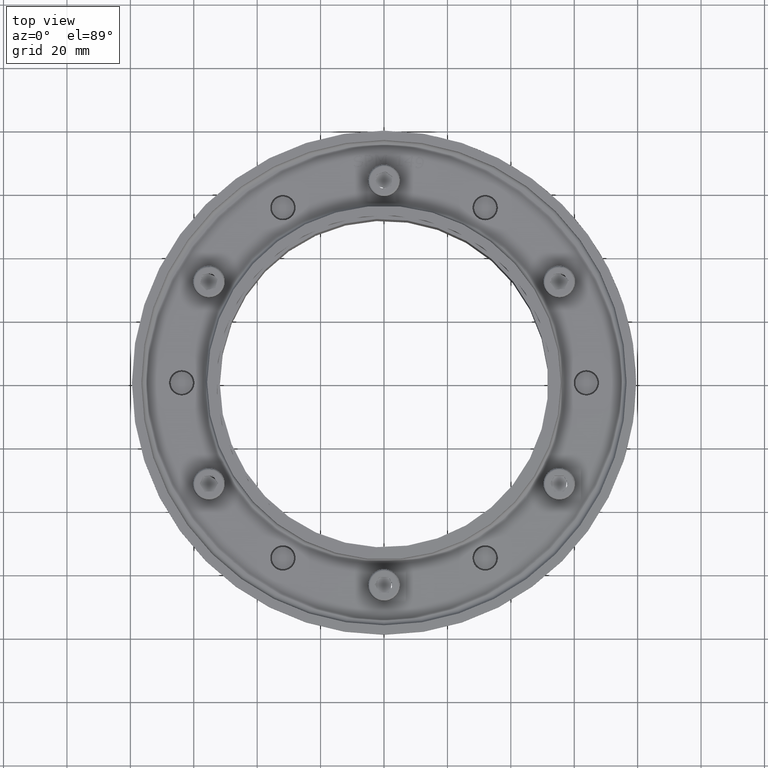
[diagram: clean part render]
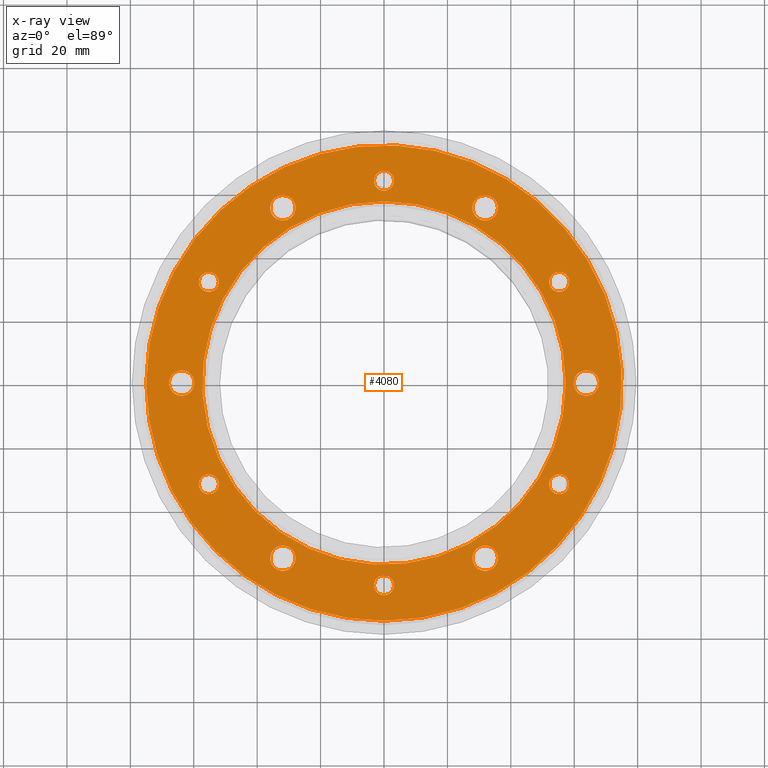
[diagram: x-ray — body ghosted, one internal face saturated and labeled with its STEP entity id]
A machine part, top view, then the same camera in x-ray: the body is ghosted and one INTERNAL B-rep face — a face not visible from any outside direction — is saturated and labeled: STEP entity #4080.
In plain terms, the highlighted planar face has unit normal (0, 0, -1).
Its self-contained STEP definition (entity closure, byte-faithful):
#171=FACE_BOUND('',#871,.T.);
#172=FACE_BOUND('',#872,.T.);
#173=FACE_BOUND('',#873,.T.);
#174=FACE_BOUND('',#874,.T.);
#175=FACE_BOUND('',#875,.T.);
#176=FACE_BOUND('',#876,.T.);
#177=FACE_BOUND('',#877,.T.);
#178=FACE_BOUND('',#878,.T.);
#179=FACE_BOUND('',#879,.T.);
#180=FACE_BOUND('',#880,.T.);
#181=FACE_BOUND('',#881,.T.);
#182=FACE_BOUND('',#882,.T.);
#183=FACE_BOUND('',#883,.T.);
#261=PLANE('',#4534);
#606=FACE_OUTER_BOUND('',#870,.T.);
#870=EDGE_LOOP('',(#3690,#3691));
#871=EDGE_LOOP('',(#3692,#3693));
#872=EDGE_LOOP('',(#3694));
#873=EDGE_LOOP('',(#3695));
#874=EDGE_LOOP('',(#3696));
#875=EDGE_LOOP('',(#3697));
#876=EDGE_LOOP('',(#3698));
#877=EDGE_LOOP('',(#3699));
#878=EDGE_LOOP('',(#3700));
#879=EDGE_LOOP('',(#3701));
#880=EDGE_LOOP('',(#3702));
#881=EDGE_LOOP('',(#3703));
#882=EDGE_LOOP('',(#3704));
#883=EDGE_LOOP('',(#3705));
#1643=CIRCLE('',#4526,75.);
#1647=CIRCLE('',#4530,75.);
#1650=CIRCLE('',#4535,57.3);
#1651=CIRCLE('',#4536,57.3);
#1652=CIRCLE('',#4537,4.);
#1653=CIRCLE('',#4538,4.);
#1654=CIRCLE('',#4539,4.);
#1655=CIRCLE('',#4540,4.);
#1656=CIRCLE('',#4541,4.);
#1657=CIRCLE('',#4542,4.);
#1658=CIRCLE('',#4543,3.15);
#1659=CIRCLE('',#4544,3.15);
#1660=CIRCLE('',#4545,3.15);
#1661=CIRCLE('',#4546,3.15);
#1662=CIRCLE('',#4547,3.15);
#1663=CIRCLE('',#4548,3.15);
#2043=VERTEX_POINT('',#7322);
#2044=VERTEX_POINT('',#7323);
#2049=VERTEX_POINT('',#7338);
#2050=VERTEX_POINT('',#7339);
#2051=VERTEX_POINT('',#7342);
#2052=VERTEX_POINT('',#7344);
#2053=VERTEX_POINT('',#7346);
#2054=VERTEX_POINT('',#7348);
#2055=VERTEX_POINT('',#7350);
#2056=VERTEX_POINT('',#7352);
#2057=VERTEX_POINT('',#7354);
#2058=VERTEX_POINT('',#7356);
#2059=VERTEX_POINT('',#7358);
#2060=VERTEX_POINT('',#7360);
#2061=VERTEX_POINT('',#7362);
#2062=VERTEX_POINT('',#7364);
#2607=EDGE_CURVE('',#2043,#2044,#1643,.T.);
#2611=EDGE_CURVE('',#2044,#2043,#1647,.T.);
#2615=EDGE_CURVE('',#2049,#2050,#1650,.T.);
#2616=EDGE_CURVE('',#2050,#2049,#1651,.T.);
#2617=EDGE_CURVE('',#2051,#2051,#1652,.T.);
#2618=EDGE_CURVE('',#2052,#2052,#1653,.T.);
#2619=EDGE_CURVE('',#2053,#2053,#1654,.T.);
#2620=EDGE_CURVE('',#2054,#2054,#1655,.T.);
#2621=EDGE_CURVE('',#2055,#2055,#1656,.T.);
#2622=EDGE_CURVE('',#2056,#2056,#1657,.T.);
#2623=EDGE_CURVE('',#2057,#2057,#1658,.T.);
#2624=EDGE_CURVE('',#2058,#2058,#1659,.T.);
#2625=EDGE_CURVE('',#2059,#2059,#1660,.T.);
#2626=EDGE_CURVE('',#2060,#2060,#1661,.T.);
#2627=EDGE_CURVE('',#2061,#2061,#1662,.T.);
#2628=EDGE_CURVE('',#2062,#2062,#1663,.T.);
#3690=ORIENTED_EDGE('',*,*,#2607,.F.);
#3691=ORIENTED_EDGE('',*,*,#2611,.F.);
#3692=ORIENTED_EDGE('',*,*,#2615,.F.);
#3693=ORIENTED_EDGE('',*,*,#2616,.F.);
#3694=ORIENTED_EDGE('',*,*,#2617,.T.);
#3695=ORIENTED_EDGE('',*,*,#2618,.T.);
#3696=ORIENTED_EDGE('',*,*,#2619,.T.);
#3697=ORIENTED_EDGE('',*,*,#2620,.T.);
#3698=ORIENTED_EDGE('',*,*,#2621,.T.);
#3699=ORIENTED_EDGE('',*,*,#2622,.T.);
#3700=ORIENTED_EDGE('',*,*,#2623,.T.);
#3701=ORIENTED_EDGE('',*,*,#2624,.T.);
#3702=ORIENTED_EDGE('',*,*,#2625,.T.);
#3703=ORIENTED_EDGE('',*,*,#2626,.T.);
#3704=ORIENTED_EDGE('',*,*,#2627,.T.);
#3705=ORIENTED_EDGE('',*,*,#2628,.T.);
#4080=ADVANCED_FACE('',(#606,#171,#172,#173,#174,#175,#176,#177,#178,#179,
#180,#181,#182,#183),#261,.T.);
#4526=AXIS2_PLACEMENT_3D('',#7324,#5468,#5469);
#4530=AXIS2_PLACEMENT_3D('',#7330,#5476,#5477);
#4534=AXIS2_PLACEMENT_3D('',#7337,#5485,#5486);
#4535=AXIS2_PLACEMENT_3D('',#7340,#5487,#5488);
#4536=AXIS2_PLACEMENT_3D('',#7341,#5489,#5490);
#4537=AXIS2_PLACEMENT_3D('',#7343,#5491,#5492);
#4538=AXIS2_PLACEMENT_3D('',#7345,#5493,#5494);
#4539=AXIS2_PLACEMENT_3D('',#7347,#5495,#5496);
#4540=AXIS2_PLACEMENT_3D('',#7349,#5497,#5498);
#4541=AXIS2_PLACEMENT_3D('',#7351,#5499,#5500);
#4542=AXIS2_PLACEMENT_3D('',#7353,#5501,#5502);
#4543=AXIS2_PLACEMENT_3D('',#7355,#5503,#5504);
#4544=AXIS2_PLACEMENT_3D('',#7357,#5505,#5506);
#4545=AXIS2_PLACEMENT_3D('',#7359,#5507,#5508);
#4546=AXIS2_PLACEMENT_3D('',#7361,#5509,#5510);
#4547=AXIS2_PLACEMENT_3D('',#7363,#5511,#5512);
#4548=AXIS2_PLACEMENT_3D('',#7365,#5513,#5514);
#5468=DIRECTION('center_axis',(0.,1.,0.));
#5469=DIRECTION('ref_axis',(-1.,0.,0.));
#5476=DIRECTION('center_axis',(0.,1.,0.));
#5477=DIRECTION('ref_axis',(-1.,0.,0.));
#5485=DIRECTION('center_axis',(0.,-1.,0.));
#5486=DIRECTION('ref_axis',(0.,0.,-1.));
#5487=DIRECTION('center_axis',(0.,-1.,0.));
#5488=DIRECTION('ref_axis',(1.,0.,1.22464679914735E-16));
#5489=DIRECTION('center_axis',(0.,-1.,0.));
#5490=DIRECTION('ref_axis',(1.,0.,1.22464679914735E-16));
#5491=DIRECTION('center_axis',(0.,1.,0.));
#5492=DIRECTION('ref_axis',(-0.499999999999999,0.,-0.866025403784439));
#5493=DIRECTION('center_axis',(0.,1.,0.));
#5494=DIRECTION('ref_axis',(0.500000000000001,0.,-0.866025403784438));
#5495=DIRECTION('center_axis',(0.,1.,0.));
#5496=DIRECTION('ref_axis',(1.,0.,1.38777878078145E-16));
#5497=DIRECTION('center_axis',(0.,1.,0.));
#5498=DIRECTION('ref_axis',(0.5,0.,0.866025403784439));
#5499=DIRECTION('center_axis',(0.,1.,0.));
#5500=DIRECTION('ref_axis',(-0.5,0.,0.866025403784439));
#5501=DIRECTION('center_axis',(0.,1.,0.));
#5502=DIRECTION('ref_axis',(-1.,0.,0.));
#5503=DIRECTION('center_axis',(0.,1.,0.));
#5504=DIRECTION('ref_axis',(-0.499999999999999,0.,-0.866025403784439));
#5505=DIRECTION('center_axis',(0.,1.,0.));
#5506=DIRECTION('ref_axis',(0.5,0.,-0.866025403784438));
#5507=DIRECTION('center_axis',(0.,1.,0.));
#5508=DIRECTION('ref_axis',(1.,0.,1.76225876924628E-16));
#5509=DIRECTION('center_axis',(0.,1.,0.));
#5510=DIRECTION('ref_axis',(0.5,0.,0.866025403784439));
#5511=DIRECTION('center_axis',(0.,1.,0.));
#5512=DIRECTION('ref_axis',(-0.5,0.,0.866025403784439));
#5513=DIRECTION('center_axis',(0.,1.,0.));
#5514=DIRECTION('ref_axis',(-1.,0.,0.));
#7322=CARTESIAN_POINT('',(75.,-5.,-9.18485099360515E-15));
#7323=CARTESIAN_POINT('',(-9.18485099360515E-15,-5.,75.));
#7324=CARTESIAN_POINT('Origin',(0.,-5.,0.));
#7330=CARTESIAN_POINT('Origin',(0.,-5.,0.));
#7337=CARTESIAN_POINT('Origin',(-67.55,-5.,0.));
#7338=CARTESIAN_POINT('',(-57.3,-5.,-1.40344523182287E-14));
#7339=CARTESIAN_POINT('',(-7.01722615911433E-15,-5.,-57.3));
#7340=CARTESIAN_POINT('Origin',(0.,-5.,0.));
#7341=CARTESIAN_POINT('Origin',(0.,-5.,0.));
#7342=CARTESIAN_POINT('',(57.2524207614472,-5.,-28.4358983848622));
#7343=CARTESIAN_POINT('Origin',(55.2524207614472,-5.,-31.9));
#7344=CARTESIAN_POINT('',(53.2524207614472,-5.,35.3641016151378));
#7345=CARTESIAN_POINT('Origin',(55.2524207614472,-5.,31.9));
#7346=CARTESIAN_POINT('',(-4.00000000000001,-5.,63.8));
#7347=CARTESIAN_POINT('Origin',(-4.44089209850063E-15,-5.,63.8));
#7348=CARTESIAN_POINT('',(-57.2524207614472,-5.,28.4358983848622));
#7349=CARTESIAN_POINT('Origin',(-55.2524207614472,-5.,31.9));
#7350=CARTESIAN_POINT('',(-53.2524207614472,-5.,-35.3641016151378));
#7351=CARTESIAN_POINT('Origin',(-55.2524207614472,-5.,-31.9));
#7352=CARTESIAN_POINT('',(4.,-5.,-63.8));
#7353=CARTESIAN_POINT('Origin',(0.,-5.,-63.8));
#7354=CARTESIAN_POINT('',(33.475,-5.,-52.5244407395262));
#7355=CARTESIAN_POINT('Origin',(31.9,-5.,-55.2524207614472));
#7356=CARTESIAN_POINT('',(62.225,-5.,2.72798002192098));
#7357=CARTESIAN_POINT('Origin',(63.8,-5.,-4.44089209850063E-15));
#7358=CARTESIAN_POINT('',(28.75,-5.,55.2524207614472));
#7359=CARTESIAN_POINT('Origin',(31.9,-5.,55.2524207614472));
#7360=CARTESIAN_POINT('',(-33.475,-5.,52.5244407395262));
#7361=CARTESIAN_POINT('Origin',(-31.9,-5.,55.2524207614472));
#7362=CARTESIAN_POINT('',(-62.225,-5.,-2.72798002192095));
#7363=CARTESIAN_POINT('Origin',(-63.8,-5.,2.66453525910038E-14));
#7364=CARTESIAN_POINT('',(-28.75,-5.,-55.2524207614472));
#7365=CARTESIAN_POINT('Origin',(-31.9,-5.,-55.2524207614472));